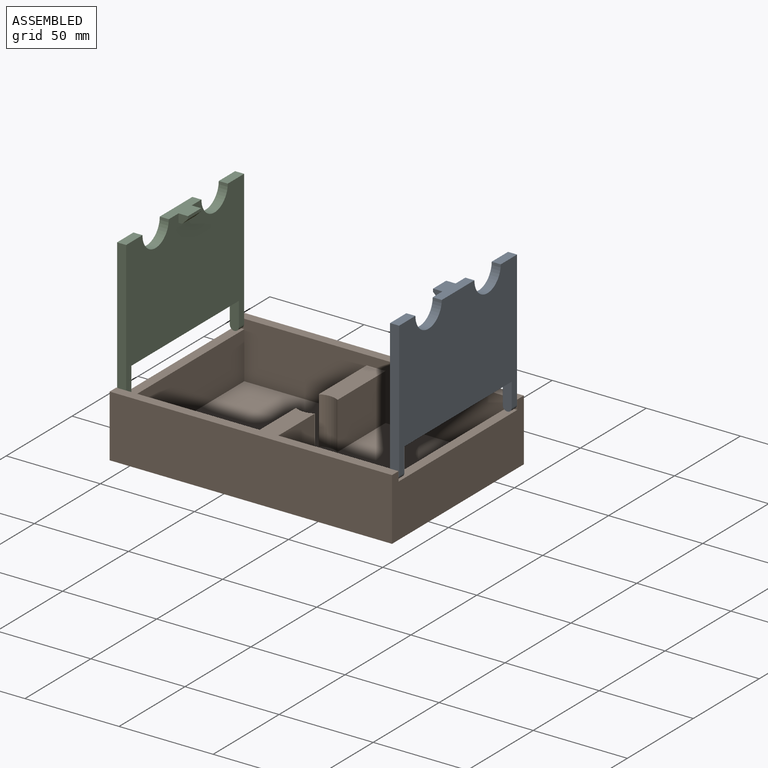
[diagram: assembled view]
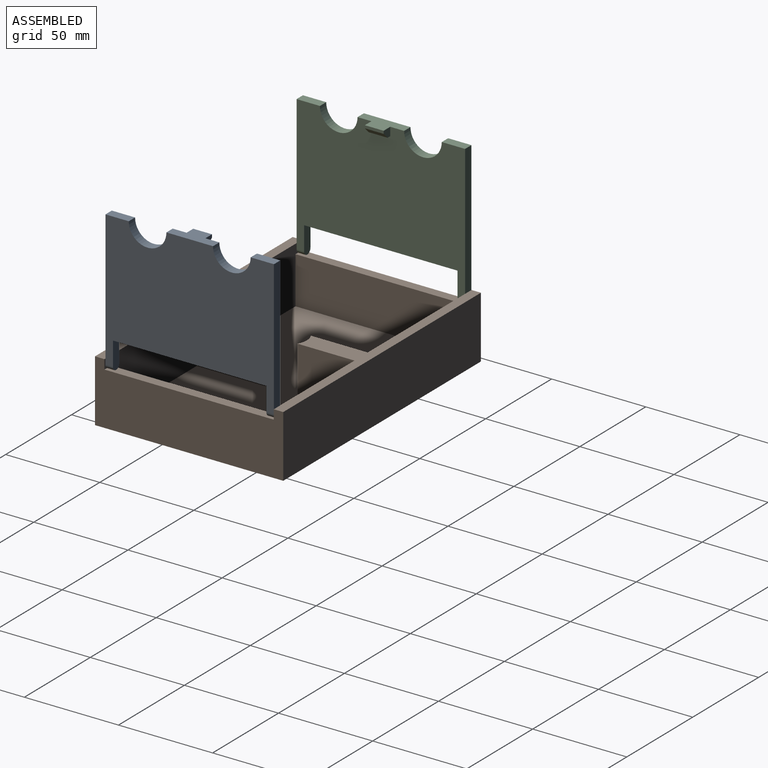
[diagram: assembled view, second angle]
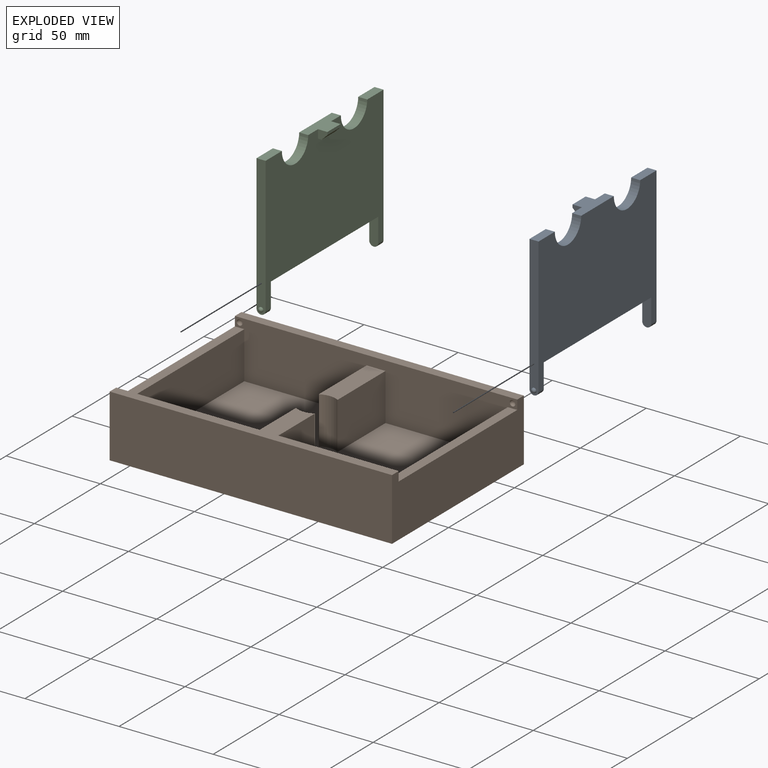
[diagram: exploded view]
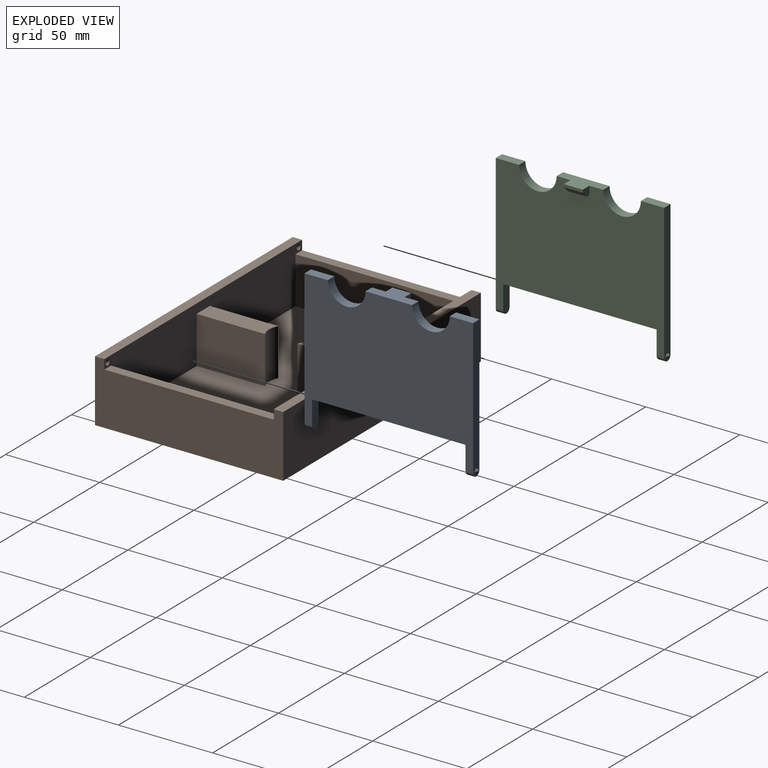
[diagram: exploded view, second angle]
ASSEMBLY  parts=3 mates=2
PART A: 21 faces, bbox 74.5x90.8x9.8 mm
  f0: plane 74.5x4.8mm, normal (0,1,0), area 350.2mm2, adj f3,f4,f7,f11,f20
  f1: plane 15x4.8mm, normal (0,-1,0), area 69.5mm2, adj f3,f4,f9,f20
  f2: plane 15x4.8mm, normal (0,1,0), area 69.5mm2, adj f3,f4,f9,f19
  f3: plane 89.5x72.1mm, normal (0,0,1), area 5066.9mm2, adj f0,f1,f2,f5,f6,f7,f8,f9
  f4: plane 89.5x72.1mm, normal (0,0,-1), area 5111.9mm2, adj f0,f1,f2,f5,f6,f7,f8,f9
  f5: plane 24.75x9.8mm, normal (1,0,0), area 168.8mm2, adj f3,f4,f12,f13,f14,f15,f17
  f6: plane 12.38x4.8mm, normal (1,0,0), area 59.4mm2, adj f3,f4,f8,f12
  f7: plane 12.38x4.8mm, normal (1,0,0), area 59.4mm2, adj f0,f3,f4,f13
  f8: plane 74.5x4.8mm, normal (0,-1,0), area 350.2mm2, adj f3,f4,f6,f10,f19
  f9: plane 81.5x4.8mm, normal (-1,0,0), area 391.2mm2, adj f1,f2,f3,f4
  f10: torus R=0.01mm, axis (0,0,1), area 10mm2, adj f8
  f11: torus R=0.01mm, axis (0,0,1), area 10mm2, adj f0
  f12: cylinder r=10mm len=20mm, axis (0,0,1), area 150.8mm2, adj f3,f4,f5,f6
  f13: cylinder r=10mm len=20mm, axis (0,0,1), area 150.8mm2, adj f3,f4,f5,f7
  f14: plane 5x4.5mm, normal (0,-1,0), area 18mm2, adj f3,f5,f16,f17,f18
  f15: plane 5x4.5mm, normal (0,1,0), area 18mm2, adj f3,f5,f16,f17,f18
  f16: plane 10x2mm, normal (-1,0,0), area 20mm2, adj f3,f14,f15,f18
  f17: plane 10x1.5mm, normal (0,0,1), area 15mm2, adj f5,f14,f15,f18
  f18: plane 10x3mm, normal (-0.71,0,0.71), area 42.4mm2, adj f14,f15,f16,f17
  f19: cylinder r=2.4mm len=4.8mm, axis (0,-1,0), area 30.2mm2, adj f2,f3,f4,f8
  f20: cylinder r=2.4mm len=4.8mm, axis (0,-1,0), area 30.2mm2, adj f0,f1,f3,f4
PART B: 26 faces, bbox 150x100x33 mm
  f0: plane 36.34x25mm, normal (1,0,0), area 908.5mm2, adj f13,f16,f19,f20
  f1: plane 36.34x25mm, normal (-1,0,0), area 908.5mm2, adj f13,f16,f19,f20
  f2: plane 36.34x10mm, normal (0,0,1), area 354.3mm2, adj f10,f14,f15,f21
  f3: plane 150x5mm, normal (0,0,1), area 750mm2, adj f4,f5,f6,f13
  f4: plane 100x33mm, normal (-1,0,0), area 2850mm2, adj f3,f5,f7,f8,f9,f13,f15,f17
  f5: plane 150x33mm, normal (0,-1,0), area 4950mm2, adj f3,f4,f6,f9
  f6: plane 100x33mm, normal (1,0,0), area 2850mm2, adj f3,f5,f7,f8,f9,f13,f15,f18
  f7: plane 150x33mm, normal (0,1,0), area 4950mm2, adj f4,f6,f8,f9
  f8: plane 150x5mm, normal (0,0,1), area 750mm2, adj f4,f6,f7,f15
  f9: plane 150x100mm, normal (0,0,-1), area 15000mm2, adj f4,f5,f6,f7
  f10: plane 36.34x25mm, normal (1,0,0), area 908.5mm2, adj f2,f15,f16,f21
  f11: plane 90x25mm, normal (-1,0,0), area 2250mm2, adj f13,f15,f16,f18
  f12: plane 90x25mm, normal (1,0,0), area 2250mm2, adj f13,f15,f16,f17
  f13: plane 150x30mm, normal (0,1,0), area 3985.9mm2, adj f0,f1,f3,f4,f6,f11,f12,f16
  f14: plane 36.34x25mm, normal (-1,0,0), area 908.5mm2, adj f2,f15,f16,f21
  f15: plane 150x30mm, normal (0,-1,0), area 3985.9mm2, adj f2,f4,f6,f8,f10,f11,f12,f14
  f16: plane 140x90mm, normal (0,0,1), area 11891.3mm2, adj f0,f1,f10,f11,f12,f13,f14,f15
  f17: plane 90x5mm, normal (0,0,1), area 450mm2, adj f4,f12,f13,f15
  f18: plane 90x5mm, normal (0,0,1), area 450mm2, adj f6,f11,f13,f15
  f19: plane 36.34x10mm, normal (0,0,1), area 354.3mm2, adj f0,f1,f13,f20
  f20: cylinder r=10mm len=25mm, axis (0,0,1), area 261.8mm2, adj f0,f1,f16,f19
  f21: cylinder r=10mm len=25mm, axis (0,0,1), area 261.8mm2, adj f2,f10,f14,f16
  f22: sphere r=1.5mm, area 14.1mm2, adj f15
  f23: sphere r=1.5mm, area 14.1mm2, adj f15
  f24: sphere r=1.5mm, area 14.1mm2, adj f13
  f25: sphere r=1.5mm, area 14.1mm2, adj f13
PART C: same geometry as A
PLACE A rot(axis=(0,-1,0),90deg) t=(74.9,0.25,65.35)mm
PLACE B at identity fixed
PLACE C rot(axis=(0.71,0,0.71),180deg) t=(-74.9,0.25,65.33)mm
MATE pin_slot A.f19 <-> B.f15  axis (0,1,0) through (72.5,45,30.5)mm
MATE pin_slot C.f8 <-> B.f15  axis (0,1,0) through (-72.5,45,30.5)mm
